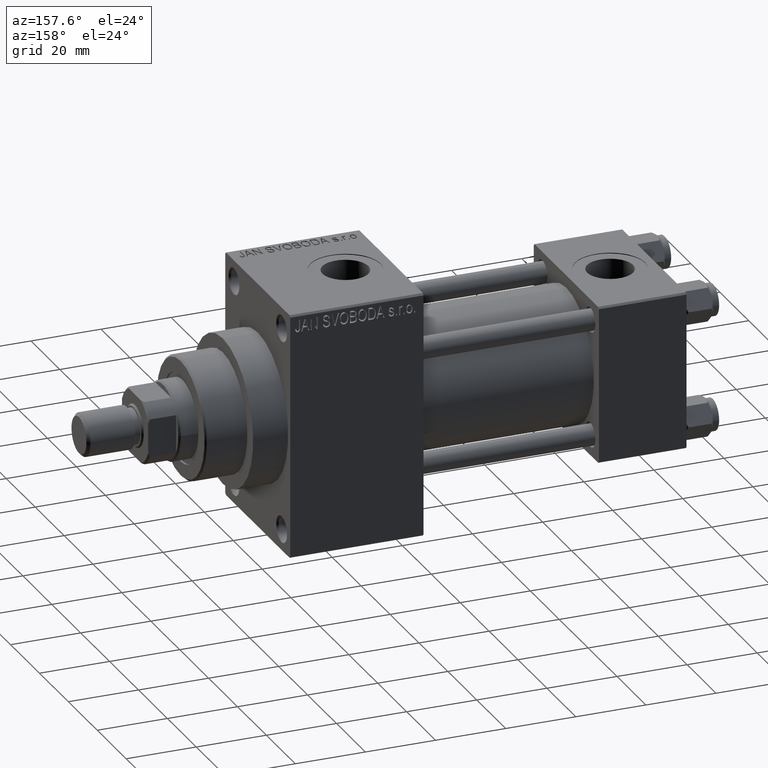
[diagram: clean part render]
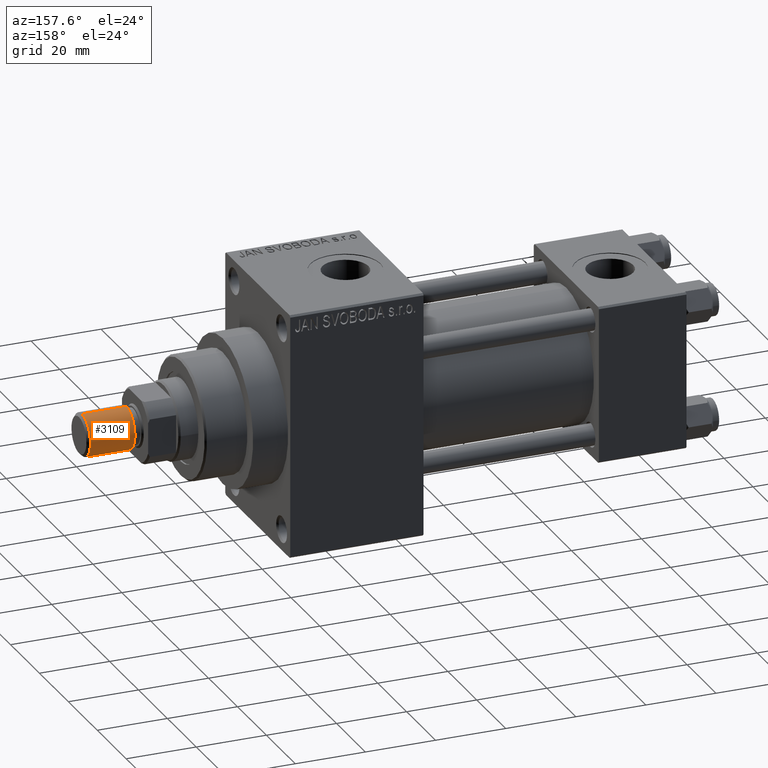
[diagram: same view with one face highlighted and labeled with its STEP entity id]
A machine part, auxiliary view. The second image highlights one B-rep face of the part: STEP entity #3109.
In plain terms, the highlighted cylindrical surface (edge-blend (fillet) strip) has radius 6 mm, axis along (1, -0, -0).
Its self-contained STEP definition (entity closure, byte-faithful):
#1108 = VERTEX_POINT ( 'NONE', #21703 ) ;
#3109 = ADVANCED_FACE ( 'NONE', ( #10013 ), #6147, .T. ) ;
#3293 = CARTESIAN_POINT ( 'NONE',  ( -6.000000000000000888, 0.000000000000000000, 13.50000000000000000 ) ) ;
#4236 = AXIS2_PLACEMENT_3D ( 'NONE', #17344, #32033, #46704 ) ;
#4886 = LINE ( 'NONE', #12357, #40756 ) ;
#6147 = CYLINDRICAL_SURFACE ( 'NONE', #7066, 6.000000000000000888 ) ;
#7066 = AXIS2_PLACEMENT_3D ( 'NONE', #20855, #45891, #13384 ) ;
#7679 = LINE ( 'NONE', #26464, #21350 ) ;
#9470 = VERTEX_POINT ( 'NONE', #3293 ) ;
#10013 = FACE_OUTER_BOUND ( 'NONE', #45144, .T. ) ;
#11474 = EDGE_CURVE ( 'NONE', #1108, #9470, #45761, .T. ) ;
#12134 = AXIS2_PLACEMENT_3D ( 'NONE', #17318, #35162, #42366 ) ;
#12357 = CARTESIAN_POINT ( 'NONE',  ( 6.000000000000000888, 7.347880794884120722E-16, 13.50000000000000000 ) ) ;
#13384 = DIRECTION ( 'NONE',  ( -1.000000000000000000, 0.000000000000000000, 0.000000000000000000 ) ) ;
#17318 = CARTESIAN_POINT ( 'NONE',  ( 0.000000000000000000, 0.000000000000000000, 0.8000000000000055955 ) ) ;
#17344 = CARTESIAN_POINT ( 'NONE',  ( 0.000000000000000000, 0.000000000000000000, 13.50000000000000000 ) ) ;
#20855 = CARTESIAN_POINT ( 'NONE',  ( 0.000000000000000000, 0.000000000000000000, 13.50000000000000000 ) ) ;
#21350 = VECTOR ( 'NONE', #23332, 1000.000000000000000 ) ;
#21703 = CARTESIAN_POINT ( 'NONE',  ( 6.000000000000000888, 7.347880794884120722E-16, 13.50000000000000000 ) ) ;
#22452 = CARTESIAN_POINT ( 'NONE',  ( 6.000000000000000888, 7.347880794884120722E-16, 0.8000000000000055955 ) ) ;
#22506 = CARTESIAN_POINT ( 'NONE',  ( -6.000000000000000888, 0.000000000000000000, 0.8000000000000055955 ) ) ;
#23332 = DIRECTION ( 'NONE',  ( -0.000000000000000000, -0.000000000000000000, -1.000000000000000000 ) ) ;
#25022 = ORIENTED_EDGE ( 'NONE', *, *, #11474, .F. ) ;
#25684 = VERTEX_POINT ( 'NONE', #22452 ) ;
#25706 = ORIENTED_EDGE ( 'NONE', *, *, #32244, .T. ) ;
#26464 = CARTESIAN_POINT ( 'NONE',  ( -6.000000000000000888, 0.000000000000000000, 13.50000000000000000 ) ) ;
#27050 = DIRECTION ( 'NONE',  ( -0.000000000000000000, -0.000000000000000000, -1.000000000000000000 ) ) ;
#32033 = DIRECTION ( 'NONE',  ( 0.000000000000000000, 0.000000000000000000, 1.000000000000000000 ) ) ;
#32244 = EDGE_CURVE ( 'NONE', #1108, #25684, #4886, .T. ) ;
#32937 = ORIENTED_EDGE ( 'NONE', *, *, #45161, .F. ) ;
#35162 = DIRECTION ( 'NONE',  ( -0.000000000000000000, -0.000000000000000000, 1.000000000000000000 ) ) ;
#37965 = ORIENTED_EDGE ( 'NONE', *, *, #44907, .T. ) ;
#40756 = VECTOR ( 'NONE', #27050, 1000.000000000000000 ) ;
#42366 = DIRECTION ( 'NONE',  ( 1.000000000000000000, 0.000000000000000000, 0.000000000000000000 ) ) ;
#42831 = CIRCLE ( 'NONE', #12134, 6.000000000000000888 ) ;
#44907 = EDGE_CURVE ( 'NONE', #25684, #46321, #42831, .T. ) ;
#45144 = EDGE_LOOP ( 'NONE', ( #25022, #25706, #37965, #32937 ) ) ;
#45161 = EDGE_CURVE ( 'NONE', #9470, #46321, #7679, .T. ) ;
#45761 = CIRCLE ( 'NONE', #4236, 6.000000000000000888 ) ;
#45891 = DIRECTION ( 'NONE',  ( -0.000000000000000000, -0.000000000000000000, -1.000000000000000000 ) ) ;
#46321 = VERTEX_POINT ( 'NONE', #22506 ) ;
#46704 = DIRECTION ( 'NONE',  ( 1.000000000000000000, 0.000000000000000000, 0.000000000000000000 ) ) ;